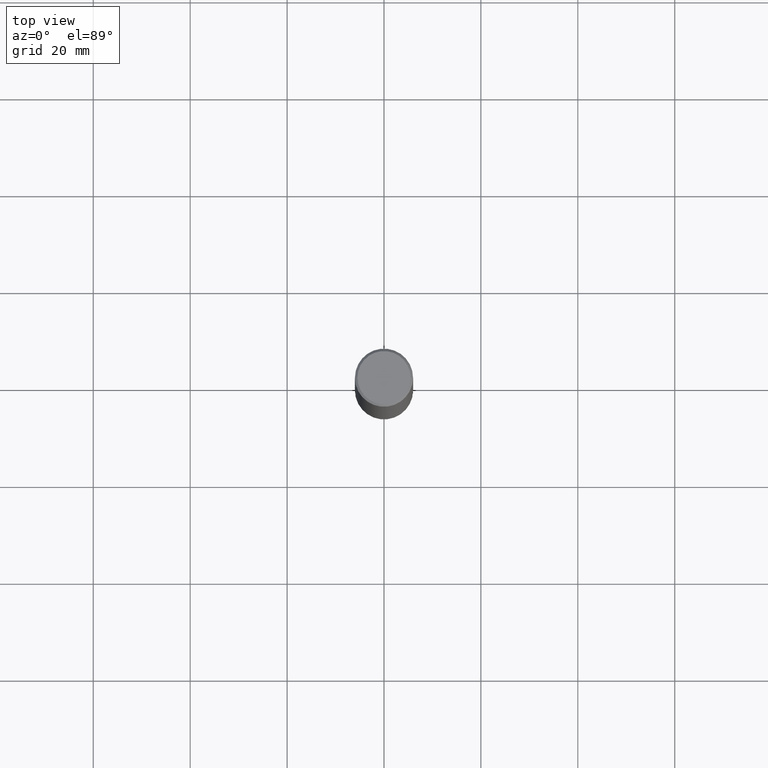
[diagram: clean part render]
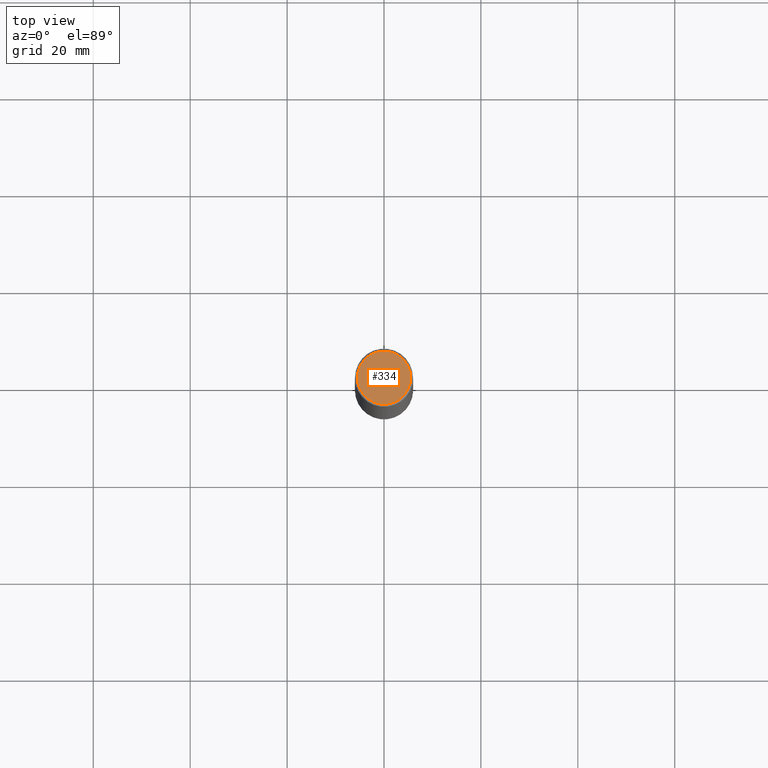
[diagram: same view with one face highlighted and labeled with its STEP entity id]
A machine part, top view. The second image highlights one B-rep face of the part: STEP entity #334.
In plain terms, the highlighted planar face has unit normal (0, -0, -1).
Its self-contained STEP definition (entity closure, byte-faithful):
#3 = CARTESIAN_POINT ( 'NONE',  ( -1.043851414335219820E-46, 1.490343170380447200E-32, 4.268512490100411279E-18 ) ) ;
#20 = VERTEX_POINT ( 'NONE', #45 ) ;
#45 = CARTESIAN_POINT ( 'NONE',  ( 0.2161999999999997257, -1.586759460484350213E-15, 4.268512490111238857E-18 ) ) ;
#54 = CIRCLE ( 'NONE', #304, 0.2161999999999997257 ) ;
#85 = CARTESIAN_POINT ( 'NONE',  ( 1.509716530915768746E-15, 0.2161999999999997257, -7.527240092128370190E-16 ) ) ;
#89 = CIRCLE ( 'NONE', #233, 0.2161999999999997257 ) ;
#96 = EDGE_LOOP ( 'NONE', ( #222, #328 ) ) ;
#106 = PLANE ( 'NONE',  #229 ) ;
#110 = DIRECTION ( 'NONE',  ( -1.000000000000000000, 6.982962677686265922E-15, -4.876176775795935793E-29 ) ) ;
#113 = DIRECTION ( 'NONE',  ( 2.438088387897960049E-29, -3.491481338843145188E-15, -1.000000000000000000 ) ) ;
#134 = FACE_OUTER_BOUND ( 'NONE', #96, .T. ) ;
#184 = VERTEX_POINT ( 'NONE', #300 ) ;
#202 = DIRECTION ( 'NONE',  ( -2.445468806185136597E-29, 3.491481338843145583E-15, 1.000000000000000000 ) ) ;
#222 = ORIENTED_EDGE ( 'NONE', *, *, #303, .T. ) ;
#229 = AXIS2_PLACEMENT_3D ( 'NONE', #85, #113, #110 ) ;
#233 = AXIS2_PLACEMENT_3D ( 'NONE', #333, #202, #309 ) ;
#235 = DIRECTION ( 'NONE',  ( -2.445468806185136597E-29, 3.491481338843145583E-15, 1.000000000000000000 ) ) ;
#300 = CARTESIAN_POINT ( 'NONE',  ( -0.2161999999999997257, 1.544631344304200197E-15, 4.268512490089730842E-18 ) ) ;
#303 = EDGE_CURVE ( 'NONE', #184, #20, #54, .T. ) ;
#304 = AXIS2_PLACEMENT_3D ( 'NONE', #3, #235, #337 ) ;
#309 = DIRECTION ( 'NONE',  ( 1.000000000000000000, -6.982962677686267499E-15, 4.876217060660161841E-29 ) ) ;
#328 = ORIENTED_EDGE ( 'NONE', *, *, #343, .T. ) ;
#333 = CARTESIAN_POINT ( 'NONE',  ( -1.043851414335219820E-46, 1.490343170380447200E-32, 4.268512490100411279E-18 ) ) ;
#334 = ADVANCED_FACE ( 'NONE', ( #134 ), #106, .F. ) ;
#337 = DIRECTION ( 'NONE',  ( 1.000000000000000000, -6.982962677686267499E-15, 4.876217060660161841E-29 ) ) ;
#343 = EDGE_CURVE ( 'NONE', #20, #184, #89, .T. ) ;